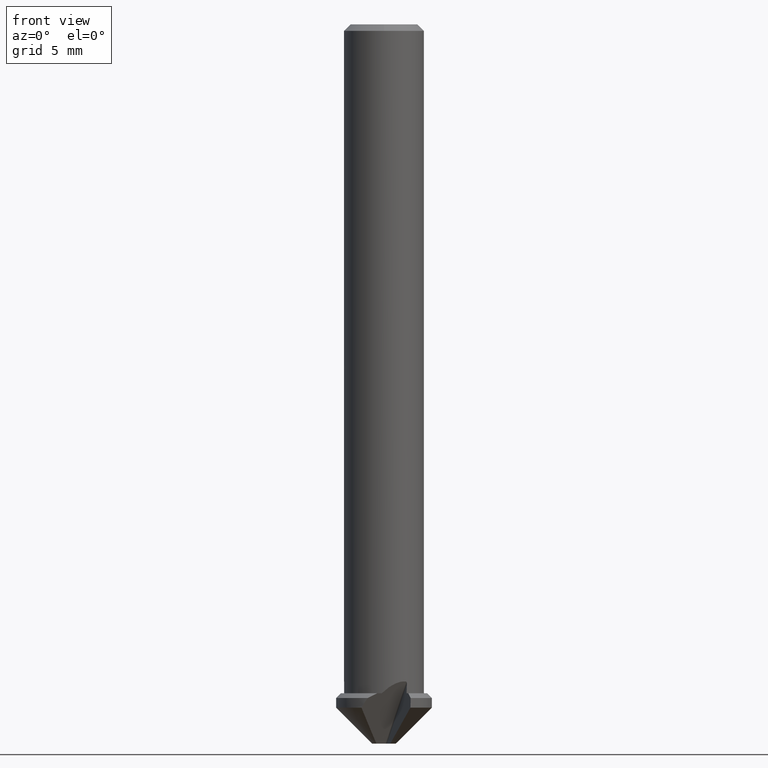
[diagram: clean part render]
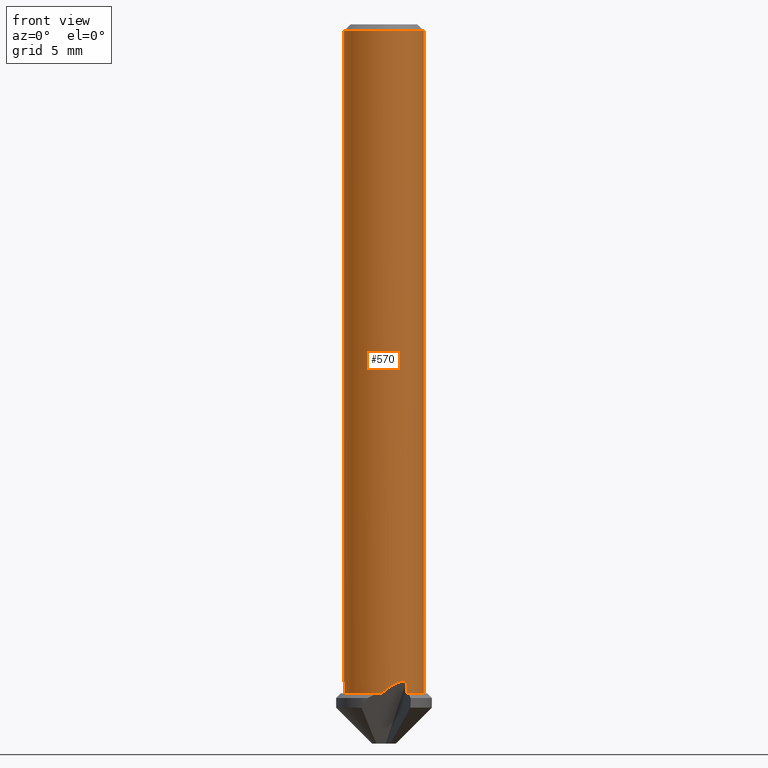
[diagram: same view with one face highlighted and labeled with its STEP entity id]
A machine part, front view. The second image highlights one B-rep face of the part: STEP entity #570.
In plain terms, the highlighted cylindrical surface (partial cylindrical patch) has radius 2.5 mm, axis along (-0, -0, 1).
Its self-contained STEP definition (entity closure, byte-faithful):
#468=EDGE_CURVE('',#844,#584,#1334,.T.);
#508=EDGE_CURVE('',#1152,#892,#1375,.T.);
#570=ADVANCED_FACE('',(#1443),#1444,.T.);
#584=VERTEX_POINT('',#1460);
#628=VERTEX_POINT('',#1508);
#670=VERTEX_POINT('',#1554);
#684=EDGE_CURVE('',#844,#1102,#1569,.T.);
#690=VERTEX_POINT('',#1575);
#736=VERTEX_POINT('',#1624);
#784=EDGE_CURVE('',#690,#1102,#1675,.T.);
#810=EDGE_CURVE('',#736,#670,#1706,.T.);
#838=EDGE_CURVE('',#892,#736,#1739,.T.);
#844=VERTEX_POINT('',#1746);
#890=EDGE_CURVE('',#584,#1194,#1798,.T.);
#892=VERTEX_POINT('',#1800);
#926=EDGE_CURVE('',#628,#690,#1835,.T.);
#1002=EDGE_CURVE('',#1248,#1254,#1918,.T.);
#1024=EDGE_CURVE('',#1248,#1152,#1941,.T.);
#1102=VERTEX_POINT('',#2023);
#1106=EDGE_CURVE('',#1194,#1254,#2027,.T.);
#1126=EDGE_CURVE('',#670,#628,#2049,.T.);
#1152=VERTEX_POINT('',#2079);
#1194=VERTEX_POINT('',#2127);
#1248=VERTEX_POINT('',#2185);
#1254=VERTEX_POINT('',#2191);
#1334=ELLIPSE('',#2273,5.00306602403646,2.5);
#1375=CIRCLE('',#2368,2.5);
#1443=FACE_OUTER_BOUND('',#2499,.T.);
#1444=CYLINDRICAL_SURFACE('',#2500,2.5);
#1460=CARTESIAN_POINT('',(1.37614486239431,-2.08715723358489,-41.1139234402125));
#1508=CARTESIAN_POINT('',(-2.49560361717412,-0.148197793328459,-41.1139234402125));
#1554=CARTESIAN_POINT('',(-2.5,-2.476560133496E-016,-41.1100794319298));
#1569=CIRCLE('',#2715,2.5);
#1575=CARTESIAN_POINT('',(-2.49051059576092,-0.21761657198517,-41.271066367513));
#1624=CARTESIAN_POINT('',(-2.5,-3.06151588455594E-016,-0.399999999999999));
#1675=ELLIPSE('',#2978,71.6342708696101,2.5);
#1706=LINE('',#3048,#3049);
#1739=CIRCLE('',#3096,2.5);
#1746=CARTESIAN_POINT('',(-0.13719324841677,-2.49623276410451,-41.85));
#1798=B_SPLINE_CURVE_WITH_KNOTS('',3,(#3183,#3184,#3185,#3186,#3187,#3188,#3189,#3190,#3191,#3192,#3193,#3194,#3195,#3196),.UNSPECIFIED.,.F.,.F.,(4,2,2,2,2,2,4),(0.184157600930735,0.192742132728683,0.20659826256085,0.234310522225183,0.293125424812681,0.351940327400179,0.362202442003432),.UNSPECIFIED.);
#1800=CARTESIAN_POINT('',(3.06151588455594E-016,-2.5,-0.399999999999999));
#1835=B_SPLINE_CURVE_WITH_KNOTS('',3,(#3268,#3269,#3270,#3271,#3272,#3273,#3274,#3275,#3276,#3277,#3278,#3279,#3280,#3281,#3282,#3283,#3284,#3285,#3286,#3287,#3288,#3289,#3290,#3291,#3292,#3293,#3294,#3295,#3296,#3297,#3298,#3299),.UNSPECIFIED.,.F.,.F.,(4,2,2,2,2,2,2,2,2,2,2,2,2,2,2,4),(0.10526679636059,0.149848446933178,0.163136407059756,0.176424367186334,0.189425219866795,0.202426072547257,0.24404080675724,0.346817540624238,0.405897531316165,0.464977522008091,0.493727498229415,0.508102486340077,0.522477474450739,0.536204889528116,0.549932304605493,0.577387134760247),.UNSPECIFIED.);
#1918=CIRCLE('',#3534,2.5);
#1941=LINE('',#3605,#3606);
#2023=CARTESIAN_POINT('',(-2.49219080961379,-0.197446115374709,-41.85));
#2027=ELLIPSE('',#3831,71.6342708696101,2.5);
#2049=ELLIPSE('',#3886,5.00306602403646,2.5);
#2079=CARTESIAN_POINT('',(2.5,3.06151588455594E-016,-0.399999999999999));
#2127=CARTESIAN_POINT('',(1.43371677750411,-2.04803715833069,-41.271066367513));
#2185=CARTESIAN_POINT('',(2.5,3.06151588455594E-016,-41.85));
#2191=CARTESIAN_POINT('',(1.41708875659995,-2.05957749451629,-41.85));
#2273=AXIS2_PLACEMENT_3D('',#4247,#4248,#4249);
#2368=AXIS2_PLACEMENT_3D('',#4276,#4277,#4278);
#2499=EDGE_LOOP('',(#4356,#4357,#4358,#4359,#4360,#4361,#4362,#4363,#4364,#4365,#4366,#4367));
#2500=AXIS2_PLACEMENT_3D('',#4368,#4369,#4370);
#2715=AXIS2_PLACEMENT_3D('',#4523,#4524,#4525);
#2978=AXIS2_PLACEMENT_3D('',#4618,#4619,#4620);
#3048=CARTESIAN_POINT('',(-2.5,-3.06151588455594E-016,-40.925));
#3049=VECTOR('',#4665,1.0);
#3096=AXIS2_PLACEMENT_3D('',#4720,#4721,#4722);
#3183=CARTESIAN_POINT('',(1.37614486239431,-2.08715723358489,-41.1139234402125));
#3184=CARTESIAN_POINT('',(1.37850030541525,-2.08560419734988,-41.1141415635389));
#3185=CARTESIAN_POINT('',(1.38082112861148,-2.0840682136214,-41.1146868102748));
#3186=CARTESIAN_POINT('',(1.38672655853296,-2.08014631371561,-41.1168822783324));
#3187=CARTESIAN_POINT('',(1.39021130795412,-2.07781801819718,-41.1190137653241));
#3188=CARTESIAN_POINT('',(1.39992110242683,-2.07129951783909,-41.1270811254951));
#3189=CARTESIAN_POINT('',(1.40540706748002,-2.06757283140281,-41.1347420055017));
#3190=CARTESIAN_POINT('',(1.41866604792631,-2.05852027735401,-41.1587030992715));
#3191=CARTESIAN_POINT('',(1.42456705640064,-2.05441733456814,-41.1784935888278));
#3192=CARTESIAN_POINT('',(1.43224530725354,-2.04907180503887,-41.2196343927208));
#3193=CARTESIAN_POINT('',(1.43386608256856,-2.04793263005879,-41.2410271209171));
#3194=CARTESIAN_POINT('',(1.43386608256856,-2.04793263005879,-41.264052793314));
#3195=CARTESIAN_POINT('',(1.43381790421655,-2.04796636515016,-41.2675362337877));
#3196=CARTESIAN_POINT('',(1.43371677750411,-2.04803715833069,-41.271066367513));
#3268=CARTESIAN_POINT('',(-2.49838179664397,-0.0899355224483645,-41.1622117300354));
#3269=CARTESIAN_POINT('',(-2.49815153081844,-0.0963322379088356,-41.1488003557232));
#3270=CARTESIAN_POINT('',(-2.49777643839955,-0.106055071233014,-41.1338561398297));
#3271=CARTESIAN_POINT('',(-2.49706714470833,-0.121110080545926,-41.1218169251271));
#3272=CARTESIAN_POINT('',(-2.49686761941061,-0.125184486597147,-41.1191767078453));
#3273=CARTESIAN_POINT('',(-2.49641511330507,-0.133905364928085,-41.1153495627207));
#3274=CARTESIAN_POINT('',(-2.4961611159631,-0.138561241303992,-41.1141842203717));
#3275=CARTESIAN_POINT('',(-2.49566104743293,-0.147290990010906,-41.1136093339465));
#3276=CARTESIAN_POINT('',(-2.49538131392577,-0.15195998930139,-41.1141309909483));
#3277=CARTESIAN_POINT('',(-2.49482542676131,-0.160828573790738,-41.1168578654616));
#3278=CARTESIAN_POINT('',(-2.49454937761884,-0.16503410632045,-41.1190437242373));
#3279=CARTESIAN_POINT('',(-2.49353358775265,-0.180060944883738,-41.1292707199678));
#3280=CARTESIAN_POINT('',(-2.49280506238175,-0.189637655602868,-41.1428663677687));
#3281=CARTESIAN_POINT('',(-2.4910958150393,-0.211382804086602,-41.1857705749852));
#3282=CARTESIAN_POINT('',(-2.49049472415427,-0.217798138099846,-41.2263731771573));
#3283=CARTESIAN_POINT('',(-2.49049472415427,-0.217798138099843,-41.2803254186769));
#3284=CARTESIAN_POINT('',(-2.49067267565873,-0.215804052657814,-41.3018178653678));
#3285=CARTESIAN_POINT('',(-2.49146383494243,-0.206470491969903,-41.3432497693991));
#3286=CARTESIAN_POINT('',(-2.49206936582275,-0.199252803465406,-41.3632167143965));
#3287=CARTESIAN_POINT('',(-2.49325390339751,-0.18360652047145,-41.3879333740522));
#3288=CARTESIAN_POINT('',(-2.49373551769797,-0.177041839615213,-41.3961217506384));
#3289=CARTESIAN_POINT('',(-2.49452644583357,-0.165387341514905,-41.4054193742128));
#3290=CARTESIAN_POINT('',(-2.49480114386018,-0.161204279479741,-41.4080299856761));
#3291=CARTESIAN_POINT('',(-2.49535541256372,-0.152383893868073,-41.4118357937317));
#3292=CARTESIAN_POINT('',(-2.49563490848592,-0.147747300346522,-41.4130326929691));
#3293=CARTESIAN_POINT('',(-2.49616947532086,-0.138415311120053,-41.4136472391728));
#3294=CARTESIAN_POINT('',(-2.49641732594316,-0.13386465043093,-41.4131246289423));
#3295=CARTESIAN_POINT('',(-2.49687227620477,-0.125092777343885,-41.4105787856303));
#3296=CARTESIAN_POINT('',(-2.49707940229521,-0.120871731663588,-41.4085549828736));
#3297=CARTESIAN_POINT('',(-2.49763214677711,-0.109067512851808,-41.4008177587705));
#3298=CARTESIAN_POINT('',(-2.49790996058979,-0.102337780315019,-41.3933781208381));
#3299=CARTESIAN_POINT('',(-2.4981125537683,-0.097127075037002,-41.3858575176012));
#3534=AXIS2_PLACEMENT_3D('',#4920,#4921,#4922);
#3605=CARTESIAN_POINT('',(2.5,3.06151588455594E-016,-40.925));
#3606=VECTOR('',#4935,1.0);
#3831=AXIS2_PLACEMENT_3D('',#5003,#5004,#5005);
#3886=AXIS2_PLACEMENT_3D('',#5037,#5038,#5039);
#4247=CARTESIAN_POINT('',(0.0,0.0,-45.4432782267687));
#4248=DIRECTION('',(-0.444080941659302,0.74370588129578,0.499693585491204));
#4249=DIRECTION('',(-0.256180817519519,0.429028050500298,-0.866202240021893));
#4276=CARTESIAN_POINT('',(0.0,0.0,-0.399999999999999));
#4277=DIRECTION('',(0.0,0.0,-1.0));
#4278=DIRECTION('',(0.0,1.0,0.0));
#4356=ORIENTED_EDGE('',*,*,#810,.T.);
#4357=ORIENTED_EDGE('',*,*,#1126,.T.);
#4358=ORIENTED_EDGE('',*,*,#926,.T.);
#4359=ORIENTED_EDGE('',*,*,#784,.T.);
#4360=ORIENTED_EDGE('',*,*,#684,.F.);
#4361=ORIENTED_EDGE('',*,*,#468,.T.);
#4362=ORIENTED_EDGE('',*,*,#890,.T.);
#4363=ORIENTED_EDGE('',*,*,#1106,.T.);
#4364=ORIENTED_EDGE('',*,*,#1002,.F.);
#4365=ORIENTED_EDGE('',*,*,#1024,.T.);
#4366=ORIENTED_EDGE('',*,*,#508,.T.);
#4367=ORIENTED_EDGE('',*,*,#838,.T.);
#4368=CARTESIAN_POINT('',(0.0,0.0,-40.925));
#4369=DIRECTION('',(-0.0,-0.0,1.0));
#4370=DIRECTION('',(-1.0,0.0,0.0));
#4523=CARTESIAN_POINT('',(0.0,0.0,-41.85));
#4524=DIRECTION('',(0.0,0.0,-1.0));
#4525=DIRECTION('',(-1.0,0.0,0.0));
#4618=CARTESIAN_POINT('',(0.0,0.0,-45.0099999999999));
#4619=DIRECTION('',(0.0348782368720624,-0.998782025129912,-0.0348994967025007));
#4620=DIRECTION('',(-0.00121797487008785,0.0348782368720624,-0.999390827019096));
#4665=DIRECTION('',(0.0,0.0,-1.0));
#4720=CARTESIAN_POINT('',(0.0,0.0,-0.399999999999999));
#4721=DIRECTION('',(0.0,0.0,-1.0));
#4722=DIRECTION('',(0.0,1.0,0.0));
#4920=CARTESIAN_POINT('',(0.0,0.0,-41.85));
#4921=DIRECTION('',(0.0,0.0,-1.0));
#4922=DIRECTION('',(-1.0,0.0,0.0));
#4935=DIRECTION('',(-0.0,-0.0,1.0));
#5003=CARTESIAN_POINT('',(0.0,0.0,-45.01));
#5004=DIRECTION('',(0.84753148816974,0.529596451735374,-0.0348994967025007));
#5005=DIRECTION('',(-0.0295964517353732,-0.0184939156146983,-0.999390827019096));
#5037=CARTESIAN_POINT('',(0.0,0.0,-45.4432782267687));
#5038=DIRECTION('',(0.866108656975691,0.0127324361655803,0.499693585491204));
#5039=DIRECTION('',(-0.49963959942913,-0.00734507068401933,0.866202240021893));